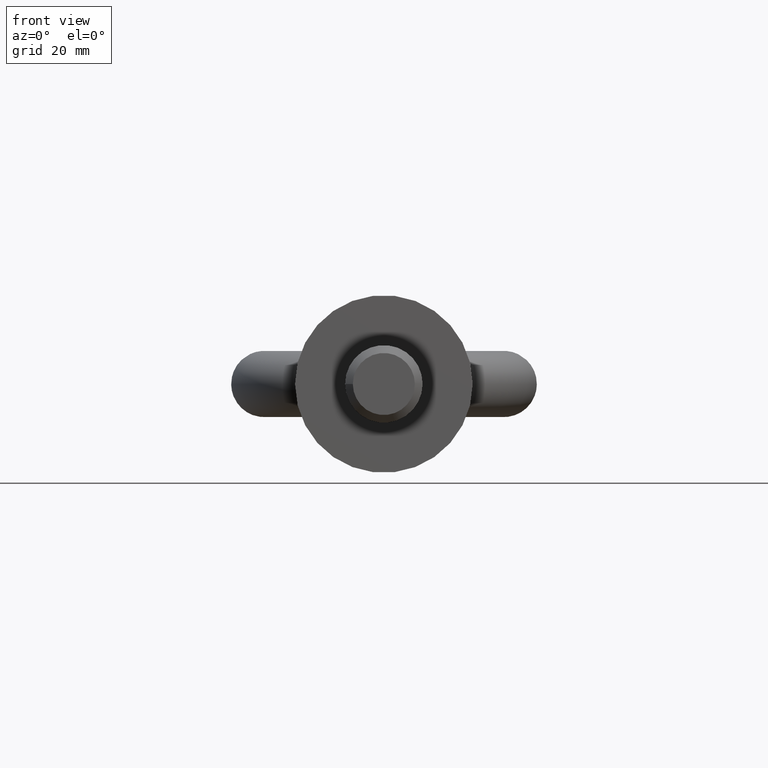
[diagram: clean part render]
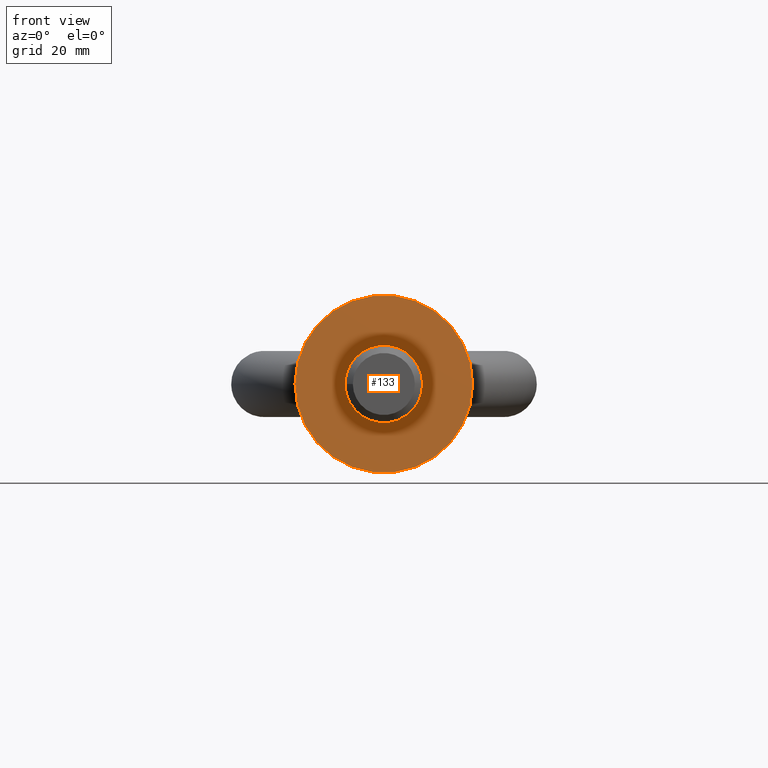
[diagram: same view with one face highlighted and labeled with its STEP entity id]
A machine part, front view. The second image highlights one B-rep face of the part: STEP entity #133.
In plain terms, the highlighted planar face has unit normal (-0, 1, 0).
Its self-contained STEP definition (entity closure, byte-faithful):
#82=FACE_BOUND('',#235,.T.);
#83=FACE_BOUND('',#236,.T.);
#93=PLANE('',#674);
#133=ADVANCED_FACE('',(#82,#83),#93,.F.);
#235=EDGE_LOOP('',(#356));
#236=EDGE_LOOP('',(#357));
#278=CIRCLE('',#671,12.);
#279=CIRCLE('',#673,27.5);
#356=ORIENTED_EDGE('',*,*,#565,.F.);
#357=ORIENTED_EDGE('',*,*,#564,.T.);
#505=VERTEX_POINT('',#1135);
#506=VERTEX_POINT('',#1138);
#564=EDGE_CURVE('',#505,#505,#278,.T.);
#565=EDGE_CURVE('',#506,#506,#279,.T.);
#671=AXIS2_PLACEMENT_3D('',#1134,#772,#773);
#673=AXIS2_PLACEMENT_3D('',#1137,#776,#777);
#674=AXIS2_PLACEMENT_3D('',#1139,#778,#779);
#772=DIRECTION('',(-2.41421590200679E-18,1.,0.));
#773=DIRECTION('',(-1.,-2.41421590200679E-18,0.));
#776=DIRECTION('',(-2.41421590200679E-18,1.,0.));
#777=DIRECTION('',(-1.,-2.41421590200679E-18,0.));
#778=DIRECTION('',(-2.41421590200679E-18,1.,0.));
#779=DIRECTION('',(-1.,-2.41421590200679E-18,0.));
#1134=CARTESIAN_POINT('',(7.18229230847018E-17,0.,0.));
#1135=CARTESIAN_POINT('',(-12.,-2.89705908240814E-17,0.));
#1137=CARTESIAN_POINT('',(7.18229230847018E-17,0.,0.));
#1138=CARTESIAN_POINT('',(-27.5,-6.63909373051866E-17,0.));
#1139=CARTESIAN_POINT('',(12.,1.23655279588548E-15,0.));